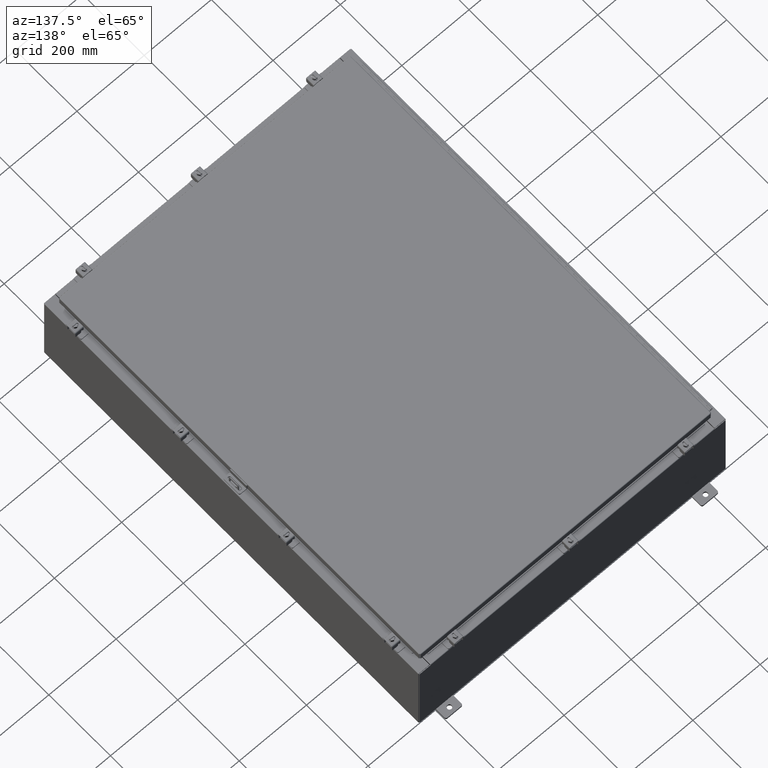
[diagram: clean part render]
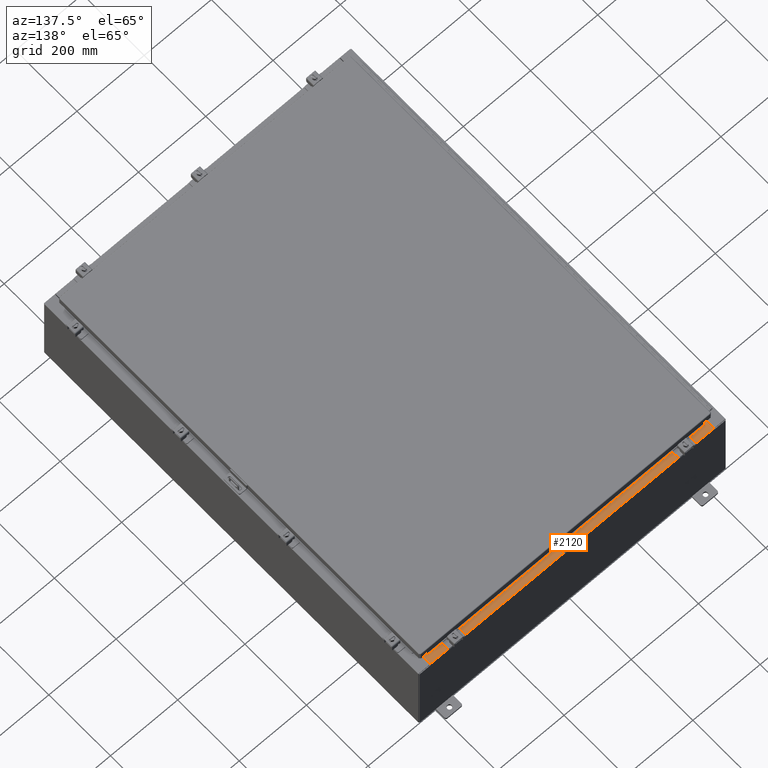
[diagram: same view with one face highlighted and labeled with its STEP entity id]
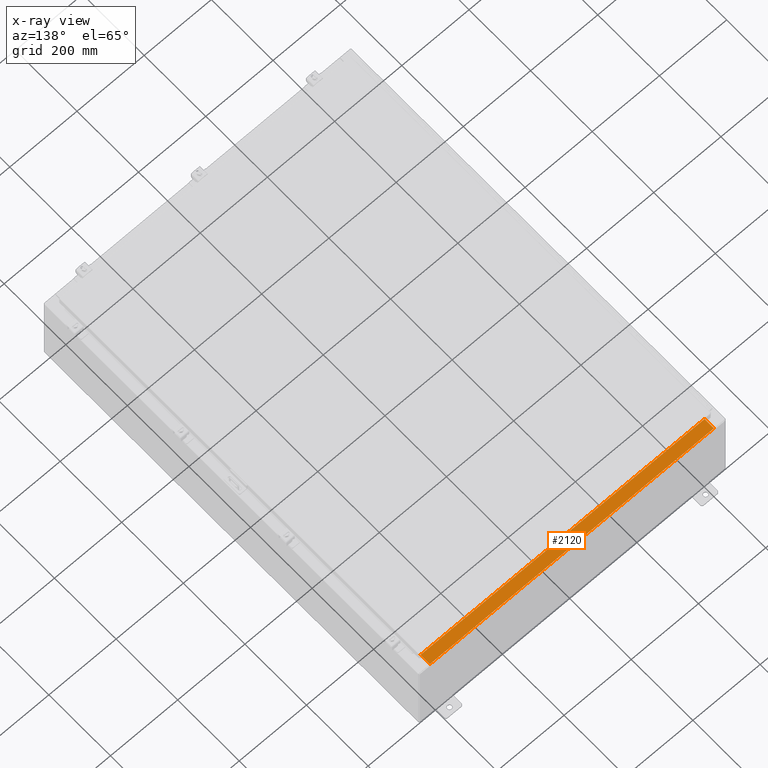
[diagram: x-ray of the same camera — body ghosted, the highlighted face saturated]
A machine part, auxiliary view. The second image highlights one B-rep face of the part: STEP entity #2120.
The next image is the same camera in x-ray: the body ghosted, the highlighted face saturated — about 0% of this face is hidden behind the body in this view.
In plain terms, the highlighted planar face has unit normal (0, 0, 1).
Its self-contained STEP definition (entity closure, byte-faithful):
#2051 = VECTOR ( 'NONE', #41286, 39.37007874015748100 ) ;
#2120 = ADVANCED_FACE ( 'NONE', ( #36853 ), #7930, .T. ) ;
#4454 = ORIENTED_EDGE ( 'NONE', *, *, #54332, .F. ) ;
#7930 = PLANE ( 'NONE',  #8908 ) ;
#8101 = DIRECTION ( 'NONE',  ( 0.0000000000000000000, 3.566381192773190000E-015, 1.000000000000000000 ) ) ;
#8908 = AXIS2_PLACEMENT_3D ( 'NONE', #54999, #8101, #37983 ) ;
#9392 = LINE ( 'NONE', #15599, #19381 ) ;
#11373 = CARTESIAN_POINT ( 'NONE',  ( 16.63720000000000400, -1.287299999999999200, 5.000000000000002700 ) ) ;
#12124 = VERTEX_POINT ( 'NONE', #31806 ) ;
#14390 = CARTESIAN_POINT ( 'NONE',  ( 16.63720000000000000, -1.300300000000001300, 5.000000000000004400 ) ) ;
#15599 = CARTESIAN_POINT ( 'NONE',  ( 2.880088610698934900E-018, -0.08770000000000026400, 5.000000000000000000 ) ) ;
#19381 = VECTOR ( 'NONE', #32784, 39.37007874015748100 ) ;
#20032 = CARTESIAN_POINT ( 'NONE',  ( -16.63720000000000000, -0.07469999999999797600, 5.000000000000000000 ) ) ;
#23643 = CARTESIAN_POINT ( 'NONE',  ( -16.63720000000000000, -0.08770000000000026400, 5.000000000000000000 ) ) ;
#24052 = VERTEX_POINT ( 'NONE', #23643 ) ;
#26930 = EDGE_CURVE ( 'NONE', #12124, #24052, #35186, .T. ) ;
#27716 = ORIENTED_EDGE ( 'NONE', *, *, #55257, .T. ) ;
#28667 = CARTESIAN_POINT ( 'NONE',  ( 16.63720000000000400, -0.08770000000000026400, 5.000000000000000000 ) ) ;
#30729 = EDGE_CURVE ( 'NONE', #47641, #12124, #34777, .T. ) ;
#31806 = CARTESIAN_POINT ( 'NONE',  ( -16.63720000000000000, -1.287299999999999200, 5.000000000000004400 ) ) ;
#32784 = DIRECTION ( 'NONE',  ( -1.000000000000000000, -3.284023746380717400E-017, 1.171208052571274300E-031 ) ) ;
#34777 = LINE ( 'NONE', #11373, #2051 ) ;
#35186 = LINE ( 'NONE', #20032, #47914 ) ;
#36188 = ORIENTED_EDGE ( 'NONE', *, *, #26930, .F. ) ;
#36853 = FACE_OUTER_BOUND ( 'NONE', #38446, .T. ) ;
#37983 = DIRECTION ( 'NONE',  ( 0.0000000000000000000, -1.000000000000000000, 3.566381192773190000E-015 ) ) ;
#38446 = EDGE_LOOP ( 'NONE', ( #36188, #44608, #4454, #27716 ) ) ;
#39401 = CARTESIAN_POINT ( 'NONE',  ( 16.63720000000000000, -1.287299999999999200, 5.000000000000004400 ) ) ;
#40033 = DIRECTION ( 'NONE',  ( -0.0000000000000000000, -1.000000000000000000, 3.566381192773190000E-015 ) ) ;
#40534 = VERTEX_POINT ( 'NONE', #28667 ) ;
#41286 = DIRECTION ( 'NONE',  ( -1.000000000000000000, 0.0000000000000000000, 0.0000000000000000000 ) ) ;
#44608 = ORIENTED_EDGE ( 'NONE', *, *, #30729, .F. ) ;
#47614 = VECTOR ( 'NONE', #40033, 39.37007874015748100 ) ;
#47641 = VERTEX_POINT ( 'NONE', #39401 ) ;
#47914 = VECTOR ( 'NONE', #54463, 39.37007874015748100 ) ;
#54332 = EDGE_CURVE ( 'NONE', #40534, #47641, #54988, .T. ) ;
#54463 = DIRECTION ( 'NONE',  ( -0.0000000000000000000, 1.000000000000000000, -3.566381192773190000E-015 ) ) ;
#54988 = LINE ( 'NONE', #14390, #47614 ) ;
#54999 = CARTESIAN_POINT ( 'NONE',  ( 0.0000000000000000000, 1.748382715945128500E-014, 5.000000000000000000 ) ) ;
#55257 = EDGE_CURVE ( 'NONE', #40534, #24052, #9392, .T. ) ;